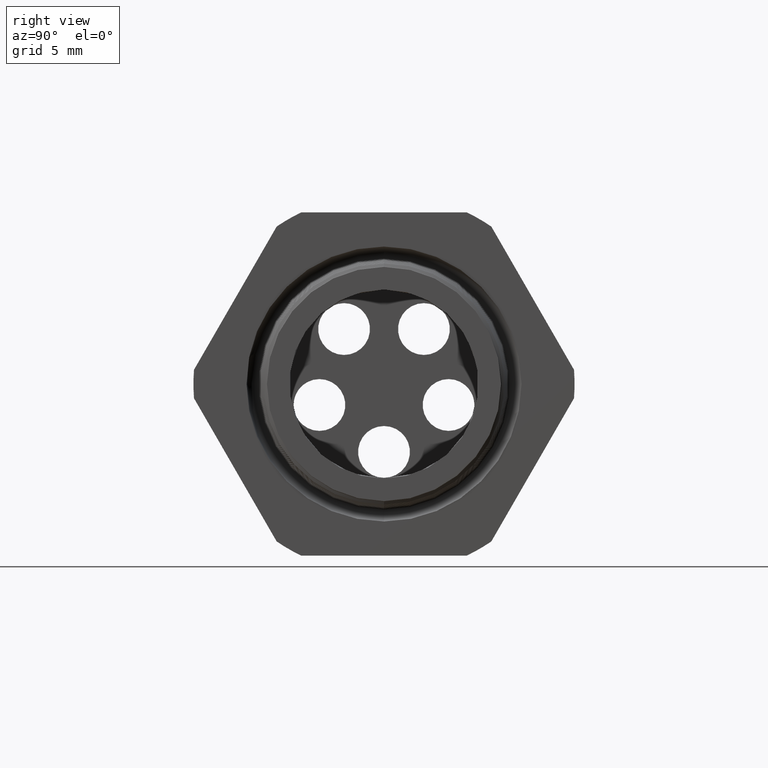
[diagram: clean part render]
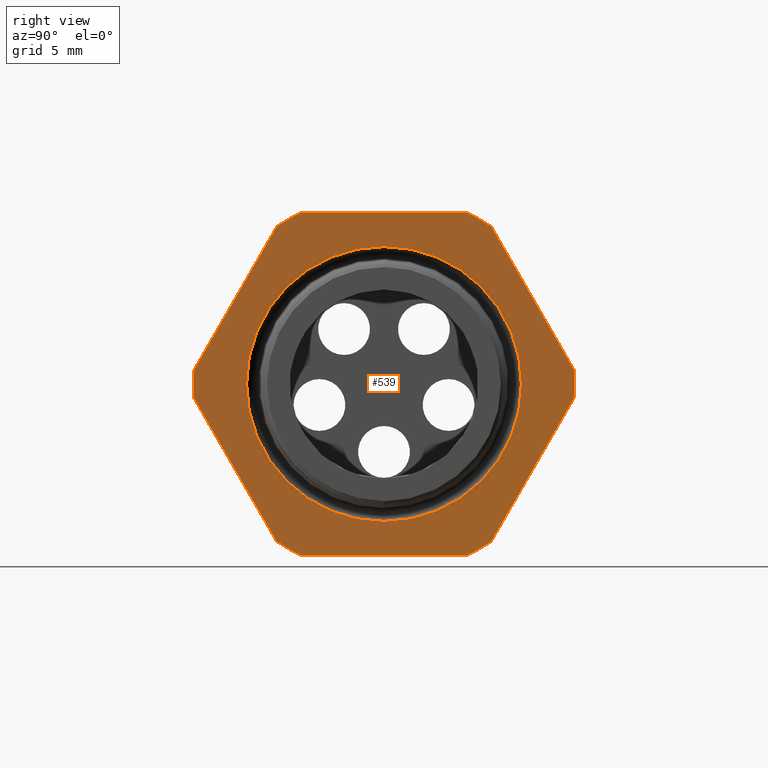
[diagram: same view with one face highlighted and labeled with its STEP entity id]
A machine part, right view. The second image highlights one B-rep face of the part: STEP entity #539.
In plain terms, the highlighted planar face has unit normal (1, 0, 0).
Its self-contained STEP definition (entity closure, byte-faithful):
#508 = VERTEX_POINT ( 'NONE', #2146 ) ;
#509 = ORIENTED_EDGE ( 'NONE', *, *, #510, .T. ) ;
#510 = EDGE_CURVE ( 'NONE', #508, #511, #2206, .T. ) ;
#511 = VERTEX_POINT ( 'NONE', #2201 ) ;
#512 = ORIENTED_EDGE ( 'NONE', *, *, #513, .T. ) ;
#513 = EDGE_CURVE ( 'NONE', #511, #514, #2200, .T. ) ;
#514 = VERTEX_POINT ( 'NONE', #2196 ) ;
#515 = ORIENTED_EDGE ( 'NONE', *, *, #516, .T. ) ;
#516 = EDGE_CURVE ( 'NONE', #514, #517, #2195, .T. ) ;
#517 = VERTEX_POINT ( 'NONE', #2190 ) ;
#518 = ORIENTED_EDGE ( 'NONE', *, *, #519, .T. ) ;
#519 = EDGE_CURVE ( 'NONE', #545, #520, #2189, .T. ) ;
#520 = VERTEX_POINT ( 'NONE', #2185 ) ;
#521 = ORIENTED_EDGE ( 'NONE', *, *, #522, .T. ) ;
#522 = EDGE_CURVE ( 'NONE', #520, #523, #2184, .T. ) ;
#523 = VERTEX_POINT ( 'NONE', #2179 ) ;
#524 = ORIENTED_EDGE ( 'NONE', *, *, #525, .T. ) ;
#525 = EDGE_CURVE ( 'NONE', #523, #526, #2178, .T. ) ;
#526 = VERTEX_POINT ( 'NONE', #2235 ) ;
#527 = ORIENTED_EDGE ( 'NONE', *, *, #528, .T. ) ;
#528 = EDGE_CURVE ( 'NONE', #526, #529, #2234, .T. ) ;
#529 = VERTEX_POINT ( 'NONE', #2229 ) ;
#530 = ORIENTED_EDGE ( 'NONE', *, *, #531, .T. ) ;
#531 = EDGE_CURVE ( 'NONE', #529, #532, #2228, .T. ) ;
#532 = VERTEX_POINT ( 'NONE', #2224 ) ;
#539 = ADVANCED_FACE ( 'NONE', ( #2213, #2212 ), #2211, .T. ) ;
#540 = EDGE_LOOP ( 'NONE', ( #541, #543 ) ) ;
#541 = ORIENTED_EDGE ( 'NONE', *, *, #542, .F. ) ;
#542 = EDGE_CURVE ( 'NONE', #5555, #5501, #2269, .T. ) ;
#543 = ORIENTED_EDGE ( 'NONE', *, *, #5557, .F. ) ;
#544 = EDGE_LOOP ( 'NONE', ( #518, #521, #524, #527, #530, #588, #591, #509, #512, #515, #574, #577 ) ) ;
#545 = VERTEX_POINT ( 'NONE', #2264 ) ;
#574 = ORIENTED_EDGE ( 'NONE', *, *, #575, .T. ) ;
#575 = EDGE_CURVE ( 'NONE', #517, #576, #2281, .T. ) ;
#576 = VERTEX_POINT ( 'NONE', #2277 ) ;
#577 = ORIENTED_EDGE ( 'NONE', *, *, #578, .T. ) ;
#578 = EDGE_CURVE ( 'NONE', #576, #545, #2276, .T. ) ;
#588 = ORIENTED_EDGE ( 'NONE', *, *, #589, .T. ) ;
#589 = EDGE_CURVE ( 'NONE', #532, #590, #2317, .T. ) ;
#590 = VERTEX_POINT ( 'NONE', #2312 ) ;
#591 = ORIENTED_EDGE ( 'NONE', *, *, #592, .T. ) ;
#592 = EDGE_CURVE ( 'NONE', #590, #508, #2311, .T. ) ;
#2146 = CARTESIAN_POINT ( 'NONE',  ( -0.3099999999999998300, -0.5866618723924792400, 0.04387183015273651100 ) ) ;
#2175 = DIRECTION ( 'NONE',  ( 0.0000000000000000000, -0.5000000000000001100, 0.8660254037844384900 ) ) ;
#2176 = VECTOR ( 'NONE', #2175, 39.37007874015748900 ) ;
#2177 = CARTESIAN_POINT ( 'NONE',  ( -0.3100000000000000000, 0.7239934640057528200, -0.1939934640057525700 ) ) ;
#2178 = LINE ( 'NONE', #2177, #2176 ) ;
#2179 = CARTESIAN_POINT ( 'NONE',  ( -0.3099999999999998300, 0.5866618723924792400, 0.04387183015273709400 ) ) ;
#2180 = DIRECTION ( 'NONE',  ( 0.0000000000000000000, 0.0000000000000000000, -1.000000000000000000 ) ) ;
#2181 = DIRECTION ( 'NONE',  ( 1.000000000000000000, 0.0000000000000000000, 0.0000000000000000000 ) ) ;
#2182 = CARTESIAN_POINT ( 'NONE',  ( -0.3100000000000000000, 0.0000000000000000000, 0.0000000000000000000 ) ) ;
#2183 = AXIS2_PLACEMENT_3D ( 'NONE', #2182, #2181, #2180 ) ;
#2184 = CIRCLE ( 'NONE', #2183, 0.5883000000000001600 ) ;
#2185 = CARTESIAN_POINT ( 'NONE',  ( -0.3100000000000000000, 0.5866618723924790200, -0.04387183015273729600 ) ) ;
#2186 = DIRECTION ( 'NONE',  ( 0.0000000000000000000, 0.4999999999999998300, 0.8660254037844386000 ) ) ;
#2187 = VECTOR ( 'NONE', #2186, 39.37007874015748900 ) ;
#2188 = CARTESIAN_POINT ( 'NONE',  ( -0.3100000000000000000, 0.7239934640057524900, 0.1939934640057524600 ) ) ;
#2189 = LINE ( 'NONE', #2188, #2187 ) ;
#2190 = CARTESIAN_POINT ( 'NONE',  ( -0.3099999999999998300, -0.2553368167734531000, -0.5300000000000001400 ) ) ;
#2191 = DIRECTION ( 'NONE',  ( 0.0000000000000000000, 0.0000000000000000000, -1.000000000000000000 ) ) ;
#2192 = DIRECTION ( 'NONE',  ( 1.000000000000000000, 0.0000000000000000000, 0.0000000000000000000 ) ) ;
#2193 = CARTESIAN_POINT ( 'NONE',  ( -0.3100000000000000000, 0.0000000000000000000, 0.0000000000000000000 ) ) ;
#2194 = AXIS2_PLACEMENT_3D ( 'NONE', #2193, #2192, #2191 ) ;
#2195 = CIRCLE ( 'NONE', #2194, 0.5883000000000000500 ) ;
#2196 = CARTESIAN_POINT ( 'NONE',  ( -0.3099999999999998300, -0.3313250556190258700, -0.4861281698472630400 ) ) ;
#2197 = DIRECTION ( 'NONE',  ( 0.0000000000000000000, 0.5000000000000001100, -0.8660254037844386000 ) ) ;
#2198 = VECTOR ( 'NONE', #2197, 39.37007874015748100 ) ;
#2199 = CARTESIAN_POINT ( 'NONE',  ( -0.3100000000000000000, -0.1939934640057524300, -0.7239934640057528200 ) ) ;
#2200 = LINE ( 'NONE', #2199, #2198 ) ;
#2201 = CARTESIAN_POINT ( 'NONE',  ( -0.3099999999999998300, -0.5866618723924791300, -0.04387183015273717100 ) ) ;
#2202 = DIRECTION ( 'NONE',  ( 0.0000000000000000000, 0.0000000000000000000, -1.000000000000000000 ) ) ;
#2203 = DIRECTION ( 'NONE',  ( 1.000000000000000000, 0.0000000000000000000, 0.0000000000000000000 ) ) ;
#2204 = CARTESIAN_POINT ( 'NONE',  ( -0.3100000000000000000, 0.0000000000000000000, 0.0000000000000000000 ) ) ;
#2205 = AXIS2_PLACEMENT_3D ( 'NONE', #2204, #2203, #2202 ) ;
#2206 = CIRCLE ( 'NONE', #2205, 0.5883000000000000500 ) ;
#2207 = DIRECTION ( 'NONE',  ( 0.0000000000000000000, 0.0000000000000000000, -1.000000000000000000 ) ) ;
#2208 = DIRECTION ( 'NONE',  ( 1.000000000000000000, 0.0000000000000000000, 0.0000000000000000000 ) ) ;
#2209 = CARTESIAN_POINT ( 'NONE',  ( -0.3100000000000000000, 1.060000000000000300, 0.0000000000000000000 ) ) ;
#2210 = AXIS2_PLACEMENT_3D ( 'NONE', #2209, #2208, #2207 ) ;
#2211 = PLANE ( 'NONE',  #2210 ) ;
#2212 = FACE_OUTER_BOUND ( 'NONE', #544, .T. ) ;
#2213 = FACE_BOUND ( 'NONE', #540, .T. ) ;
#2224 = CARTESIAN_POINT ( 'NONE',  ( -0.3099999999999998300, -0.2553368167734533200, 0.5299999999999999200 ) ) ;
#2225 = DIRECTION ( 'NONE',  ( 0.0000000000000000000, -1.000000000000000000, 0.0000000000000000000 ) ) ;
#2226 = VECTOR ( 'NONE', #2225, 39.37007874015748100 ) ;
#2227 = CARTESIAN_POINT ( 'NONE',  ( -0.3100000000000000000, 1.060000000000000300, 0.5299999999999999200 ) ) ;
#2228 = LINE ( 'NONE', #2227, #2226 ) ;
#2229 = CARTESIAN_POINT ( 'NONE',  ( -0.3099999999999998300, 0.2553368167734533200, 0.5299999999999999200 ) ) ;
#2230 = DIRECTION ( 'NONE',  ( 0.0000000000000000000, 0.0000000000000000000, -1.000000000000000000 ) ) ;
#2231 = DIRECTION ( 'NONE',  ( 1.000000000000000000, 0.0000000000000000000, 0.0000000000000000000 ) ) ;
#2232 = CARTESIAN_POINT ( 'NONE',  ( -0.3100000000000000000, 0.0000000000000000000, 0.0000000000000000000 ) ) ;
#2233 = AXIS2_PLACEMENT_3D ( 'NONE', #2232, #2231, #2230 ) ;
#2234 = CIRCLE ( 'NONE', #2233, 0.5882999999999999300 ) ;
#2235 = CARTESIAN_POINT ( 'NONE',  ( -0.3099999999999998300, 0.3313250556190259800, 0.4861281698472629800 ) ) ;
#2264 = CARTESIAN_POINT ( 'NONE',  ( -0.3099999999999998300, 0.3313250556190262000, -0.4861281698472627600 ) ) ;
#2265 = DIRECTION ( 'NONE',  ( 0.0000000000000000000, 0.0000000000000000000, -1.000000000000000000 ) ) ;
#2266 = DIRECTION ( 'NONE',  ( 1.000000000000000000, 0.0000000000000000000, 0.0000000000000000000 ) ) ;
#2267 = CARTESIAN_POINT ( 'NONE',  ( -0.3100000000000000000, 0.0000000000000000000, 0.0000000000000000000 ) ) ;
#2268 = AXIS2_PLACEMENT_3D ( 'NONE', #2267, #2266, #2265 ) ;
#2269 = CIRCLE ( 'NONE', #2268, 0.4243759711786115300 ) ;
#2272 = DIRECTION ( 'NONE',  ( 0.0000000000000000000, 0.0000000000000000000, -1.000000000000000000 ) ) ;
#2273 = DIRECTION ( 'NONE',  ( 1.000000000000000000, 0.0000000000000000000, 0.0000000000000000000 ) ) ;
#2274 = CARTESIAN_POINT ( 'NONE',  ( -0.3100000000000000000, 0.0000000000000000000, 0.0000000000000000000 ) ) ;
#2275 = AXIS2_PLACEMENT_3D ( 'NONE', #2274, #2273, #2272 ) ;
#2276 = CIRCLE ( 'NONE', #2275, 0.5882999999999999300 ) ;
#2277 = CARTESIAN_POINT ( 'NONE',  ( -0.3099999999999998300, 0.2553368167734529900, -0.5300000000000001400 ) ) ;
#2278 = DIRECTION ( 'NONE',  ( 0.0000000000000000000, 1.000000000000000000, 0.0000000000000000000 ) ) ;
#2279 = VECTOR ( 'NONE', #2278, 39.37007874015748100 ) ;
#2280 = CARTESIAN_POINT ( 'NONE',  ( -0.3100000000000000000, 1.060000000000000300, -0.5300000000000001400 ) ) ;
#2281 = LINE ( 'NONE', #2280, #2279 ) ;
#2308 = DIRECTION ( 'NONE',  ( 0.0000000000000000000, -0.4999999999999996100, -0.8660254037844388200 ) ) ;
#2309 = VECTOR ( 'NONE', #2308, 39.37007874015748900 ) ;
#2310 = CARTESIAN_POINT ( 'NONE',  ( -0.3100000000000000000, -0.1939934640057527100, 0.7239934640057521500 ) ) ;
#2311 = LINE ( 'NONE', #2310, #2309 ) ;
#2312 = CARTESIAN_POINT ( 'NONE',  ( -0.3099999999999998300, -0.3313250556190260900, 0.4861281698472629800 ) ) ;
#2313 = DIRECTION ( 'NONE',  ( 0.0000000000000000000, 0.0000000000000000000, -1.000000000000000000 ) ) ;
#2314 = DIRECTION ( 'NONE',  ( 1.000000000000000000, 0.0000000000000000000, 0.0000000000000000000 ) ) ;
#2315 = CARTESIAN_POINT ( 'NONE',  ( -0.3100000000000000000, 0.0000000000000000000, 0.0000000000000000000 ) ) ;
#2316 = AXIS2_PLACEMENT_3D ( 'NONE', #2315, #2314, #2313 ) ;
#2317 = CIRCLE ( 'NONE', #2316, 0.5882999999999999300 ) ;
#4447 = CARTESIAN_POINT ( 'NONE',  ( -0.3100000000000000000, 5.197106747389359900E-017, 0.4243759711786115300 ) ) ;
#4573 = DIRECTION ( 'NONE',  ( 0.0000000000000000000, 0.0000000000000000000, -1.000000000000000000 ) ) ;
#4574 = DIRECTION ( 'NONE',  ( 1.000000000000000000, 0.0000000000000000000, 0.0000000000000000000 ) ) ;
#4575 = CARTESIAN_POINT ( 'NONE',  ( -0.3100000000000000000, 0.0000000000000000000, 0.0000000000000000000 ) ) ;
#4576 = AXIS2_PLACEMENT_3D ( 'NONE', #4575, #4574, #4573 ) ;
#4577 = CIRCLE ( 'NONE', #4576, 0.4243759711786115300 ) ;
#4579 = CARTESIAN_POINT ( 'NONE',  ( -0.3100000000000000000, 0.0000000000000000000, -0.4243759711786115300 ) ) ;
#5501 = VERTEX_POINT ( 'NONE', #4447 ) ;
#5555 = VERTEX_POINT ( 'NONE', #4579 ) ;
#5557 = EDGE_CURVE ( 'NONE', #5501, #5555, #4577, .T. ) ;